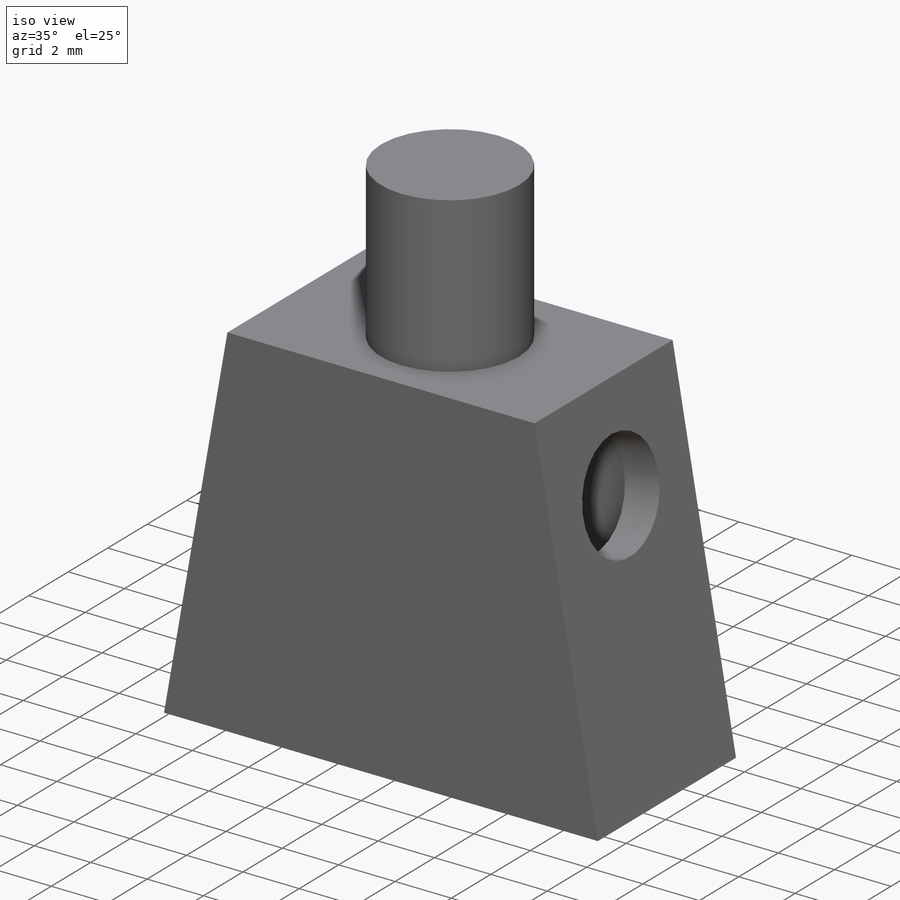
[diagram: iso view]
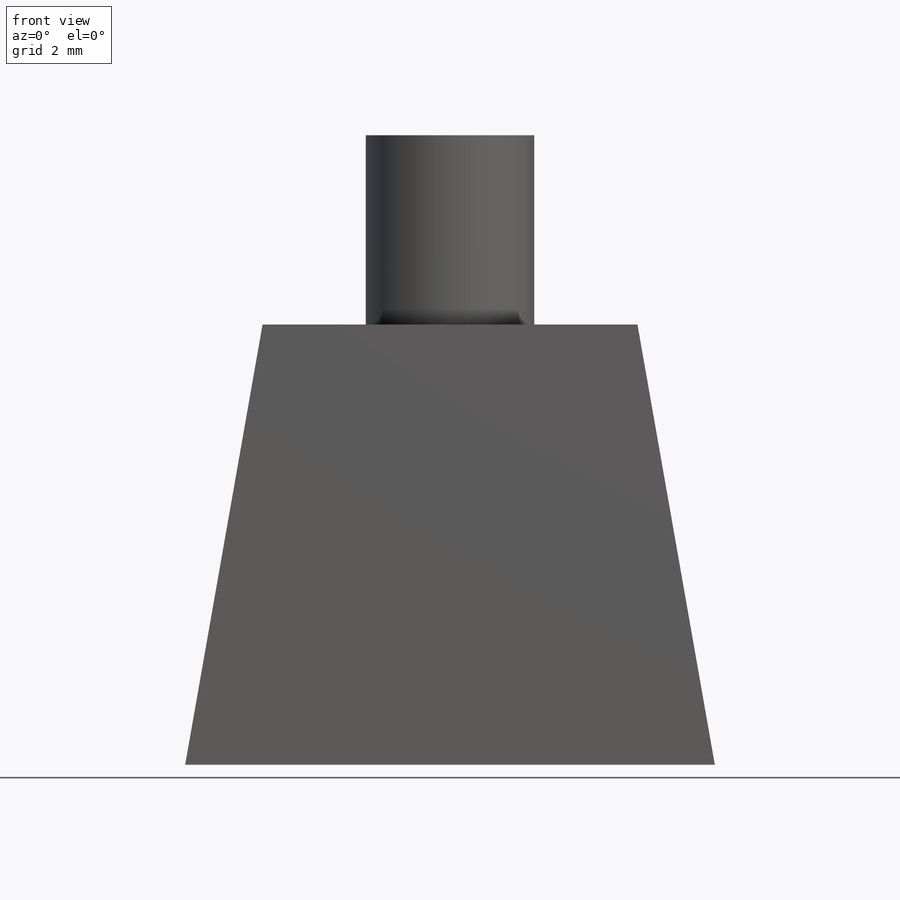
[diagram: front view]
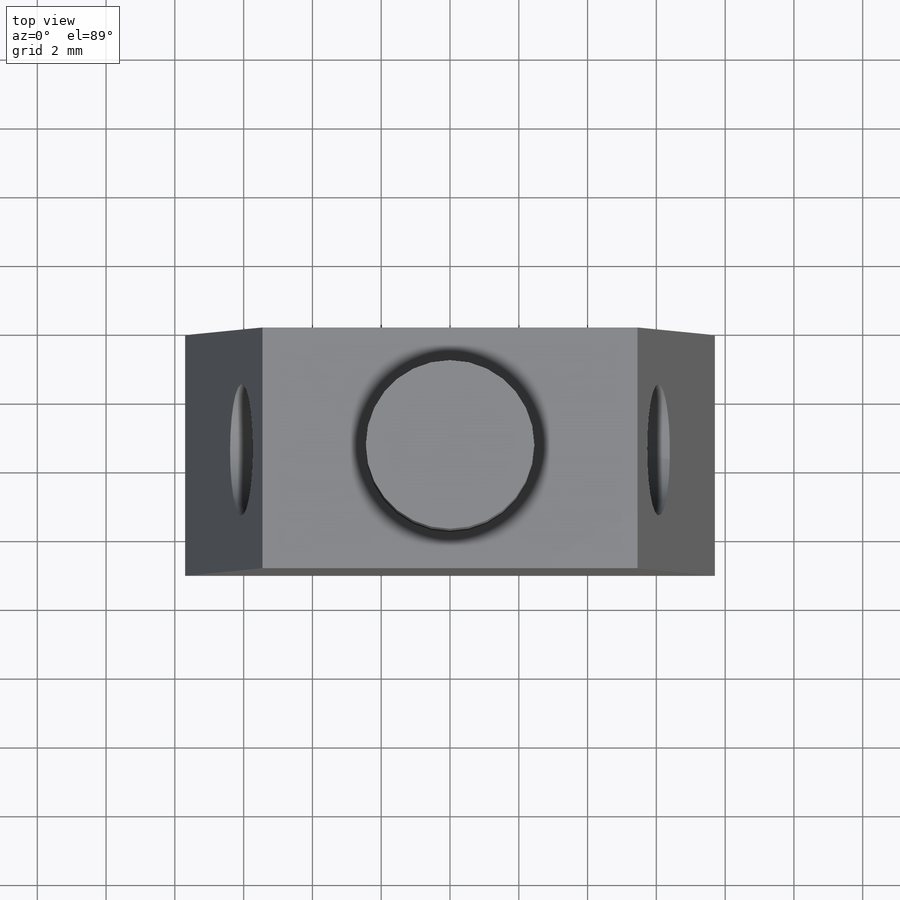
[diagram: top view]
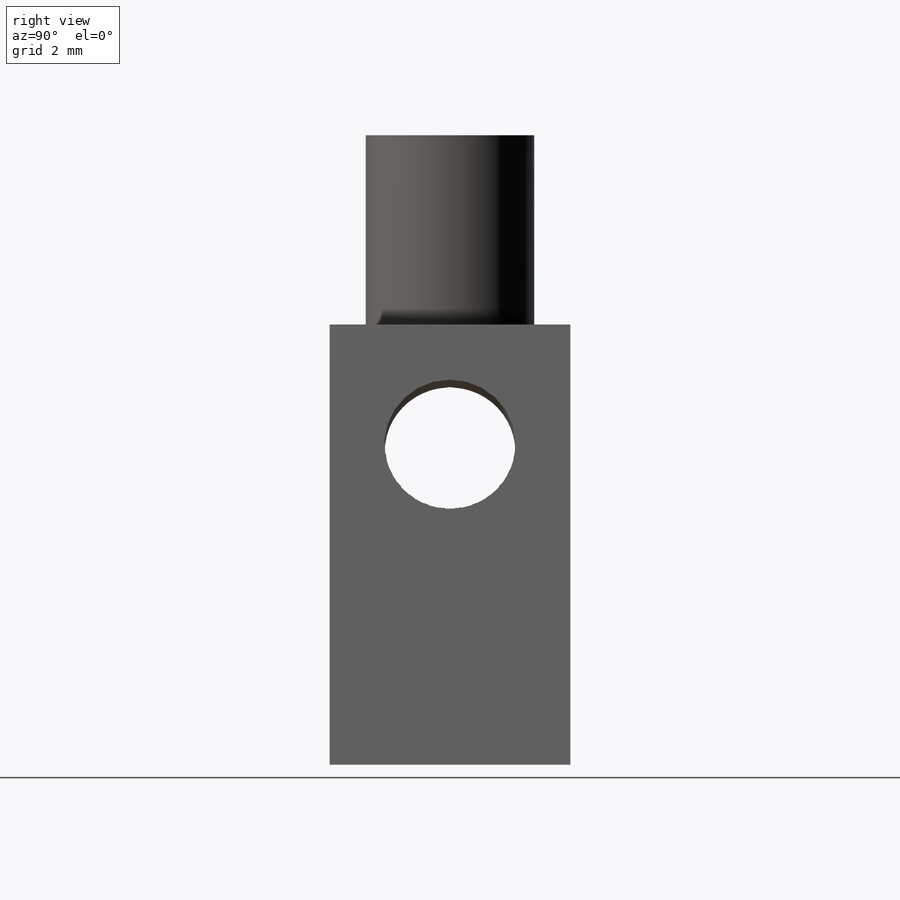
[diagram: right view]
SOLIDWORKS PART (.sldprt)
format: sldprt  version: not decoded by parser v0  size: 165,888 bytes
history: native  units: mm
features: sketch x4, extrude x2, cut_extrude x2, material x1, shell x1 (+14 scaffold rows collapsed)
feature tree (24):
  scaffold x14  (default folders/planes/origin — collapsed)
  material  "Material <not specified>"
  sketch  "Sketch1"  dims[D1=15.4mm D2=12.8mm D3=10.9mm]
  extrude  "Extrude1"  Depth=7mm
  shell  "Shell1"  Thickness=1.25mm
  sketch  "Sketch2"  dims[D1=4.9mm]
  extrude  "Extrude2"  Depth=5.5mm
  sketch  "Sketch3"  dims[D1=3.82mm D2=3.54mm]
  cut_extrude  "Extrude3"  [1 undecoded]
  sketch  "Sketch4"  dims[D1=3.82mm D2=3.54mm]
  cut_extrude  "Extrude4"  [1 undecoded]
decode coverage: 7 of 9 modeling features carry decoded parameters
note: 2 parameter values undecoded
note: suppression state not decoded; provenance and decode notes live in map.json
